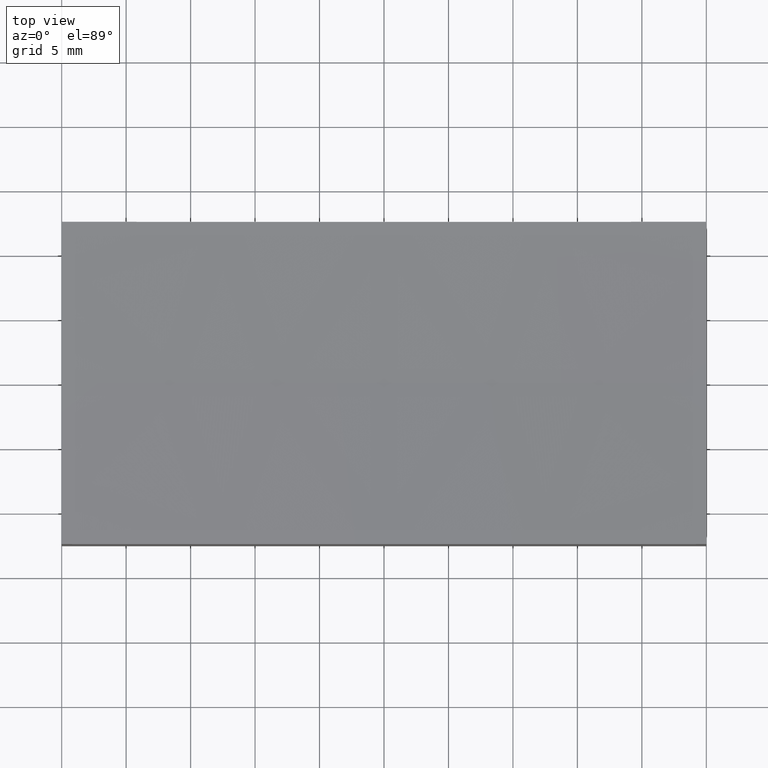
[diagram: clean part render]
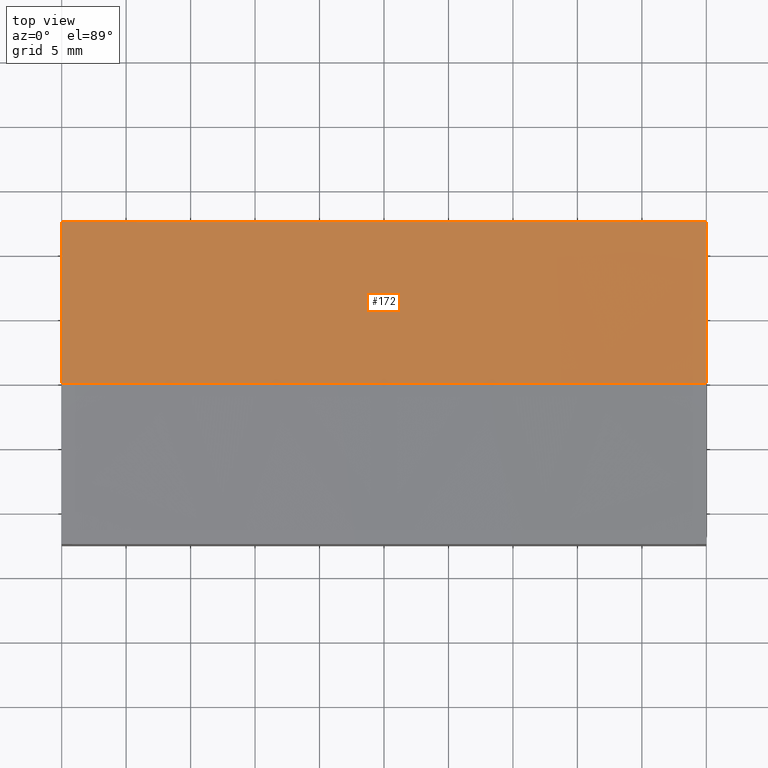
[diagram: same view with one face highlighted and labeled with its STEP entity id]
A machine part, top view. The second image highlights one B-rep face of the part: STEP entity #172.
In plain terms, the highlighted spherical surface has radius 600 mm.
Its self-contained STEP definition (entity closure, byte-faithful):
#2 = DIRECTION ( 'NONE',  ( 0.000000000000000000, 0.000000000000000000, 1.000000000000000000 ) ) ;
#8 = VERTEX_POINT ( 'NONE', #211 ) ;
#16 = CIRCLE ( 'NONE', #189, 599.8697775350913162 ) ;
#21 = CARTESIAN_POINT ( 'NONE',  ( 25.00000000000000000, -6.938893903907228378E-15, 609.0000000000000000 ) ) ;
#23 = VERTEX_POINT ( 'NONE', #104 ) ;
#25 = ORIENTED_EDGE ( 'NONE', *, *, #101, .T. ) ;
#32 = EDGE_CURVE ( 'NONE', #23, #45, #197, .T. ) ;
#40 = EDGE_LOOP ( 'NONE', ( #61, #245, #106, #25, #163 ) ) ;
#43 = CARTESIAN_POINT ( 'NONE',  ( 0.000000000000000000, 0.000000000000000000, 609.0000000000000000 ) ) ;
#45 = VERTEX_POINT ( 'NONE', #184 ) ;
#46 = VERTEX_POINT ( 'NONE', #167 ) ;
#47 = DIRECTION ( 'NONE',  ( 1.000000000000000000, 1.224646799147353207E-16, 0.000000000000000000 ) ) ;
#48 = DIRECTION ( 'NONE',  ( -1.000000000000000000, -1.387778780781445676E-16, 0.000000000000000000 ) ) ;
#58 = DIRECTION ( 'NONE',  ( -2.777970041428653968E-16, -1.000000000000000000, 0.000000000000000000 ) ) ;
#60 = DIRECTION ( 'NONE',  ( -0.000000000000000000, 1.000000000000000000, -0.000000000000000000 ) ) ;
#61 = ORIENTED_EDGE ( 'NONE', *, *, #204, .T. ) ;
#71 = AXIS2_PLACEMENT_3D ( 'NONE', #108, #48, #228 ) ;
#79 = VERTEX_POINT ( 'NONE', #250 ) ;
#80 = CARTESIAN_POINT ( 'NONE',  ( 0.000000000000000000, 12.50000000000000000, 609.0000000000000000 ) ) ;
#101 = EDGE_CURVE ( 'NONE', #79, #46, #127, .T. ) ;
#104 = CARTESIAN_POINT ( 'NONE',  ( -25.00000000000000000, -3.061616997868383043E-15, 9.521059585910096601 ) ) ;
#106 = ORIENTED_EDGE ( 'NONE', *, *, #239, .F. ) ;
#108 = CARTESIAN_POINT ( 'NONE',  ( -25.00000000000000000, -3.469446951953614189E-15, 609.0000000000000000 ) ) ;
#109 = AXIS2_PLACEMENT_3D ( 'NONE', #118, #178, #2 ) ;
#118 = CARTESIAN_POINT ( 'NONE',  ( 0.000000000000000000, 0.000000000000000000, 609.0000000000000000 ) ) ;
#125 = DIRECTION ( 'NONE',  ( 1.000000000000000000, 0.000000000000000000, 0.000000000000000000 ) ) ;
#127 = CIRCLE ( 'NONE', #237, 599.4789404140898341 ) ;
#130 = DIRECTION ( 'NONE',  ( 0.000000000000000000, 0.000000000000000000, -1.000000000000000000 ) ) ;
#140 = AXIS2_PLACEMENT_3D ( 'NONE', #146, #227, #47 ) ;
#146 = CARTESIAN_POINT ( 'NONE',  ( 0.000000000000000000, 0.000000000000000000, 609.0000000000000000 ) ) ;
#152 = CIRCLE ( 'NONE', #109, 600.0000000000001137 ) ;
#153 = CIRCLE ( 'NONE', #71, 599.4789404140898341 ) ;
#163 = ORIENTED_EDGE ( 'NONE', *, *, #193, .T. ) ;
#164 = DIRECTION ( 'NONE',  ( 0.000000000000000000, -1.000000000000000000, -0.000000000000000000 ) ) ;
#167 = CARTESIAN_POINT ( 'NONE',  ( 25.00000000000000355, 12.50000000000000000, 9.651395263157391824 ) ) ;
#172 = ADVANCED_FACE ( 'NONE', ( #238 ), #222, .F. ) ;
#178 = DIRECTION ( 'NONE',  ( 0.000000000000000000, 1.000000000000000000, -0.000000000000000000 ) ) ;
#184 = CARTESIAN_POINT ( 'NONE',  ( 3.670038055528952072E-14, 0.000000000000000000, 9.000000000000007105 ) ) ;
#189 = AXIS2_PLACEMENT_3D ( 'NONE', #80, #60, #130 ) ;
#193 = EDGE_CURVE ( 'NONE', #46, #8, #16, .T. ) ;
#197 = CIRCLE ( 'NONE', #140, 600.0000000000000000 ) ;
#204 = EDGE_CURVE ( 'NONE', #8, #23, #153, .T. ) ;
#211 = CARTESIAN_POINT ( 'NONE',  ( -25.00000000000000000, 12.50000000000000000, 9.651395263157391824 ) ) ;
#222 = SPHERICAL_SURFACE ( 'NONE', #235, 600.0000000000000000 ) ;
#227 = DIRECTION ( 'NONE',  ( 1.224646799147353207E-16, -1.000000000000000000, -7.964984221775759500E-36 ) ) ;
#228 = DIRECTION ( 'NONE',  ( -1.388985020714326984E-16, 1.000000000000000000, 0.000000000000000000 ) ) ;
#235 = AXIS2_PLACEMENT_3D ( 'NONE', #43, #164, #125 ) ;
#237 = AXIS2_PLACEMENT_3D ( 'NONE', #21, #241, #58 ) ;
#238 = FACE_OUTER_BOUND ( 'NONE', #40, .T. ) ;
#239 = EDGE_CURVE ( 'NONE', #79, #45, #152, .T. ) ;
#241 = DIRECTION ( 'NONE',  ( 1.000000000000000000, -2.775557561562891351E-16, -0.000000000000000000 ) ) ;
#245 = ORIENTED_EDGE ( 'NONE', *, *, #32, .T. ) ;
#250 = CARTESIAN_POINT ( 'NONE',  ( 25.00000000000000000, 0.000000000000000000, 9.521059585910096601 ) ) ;